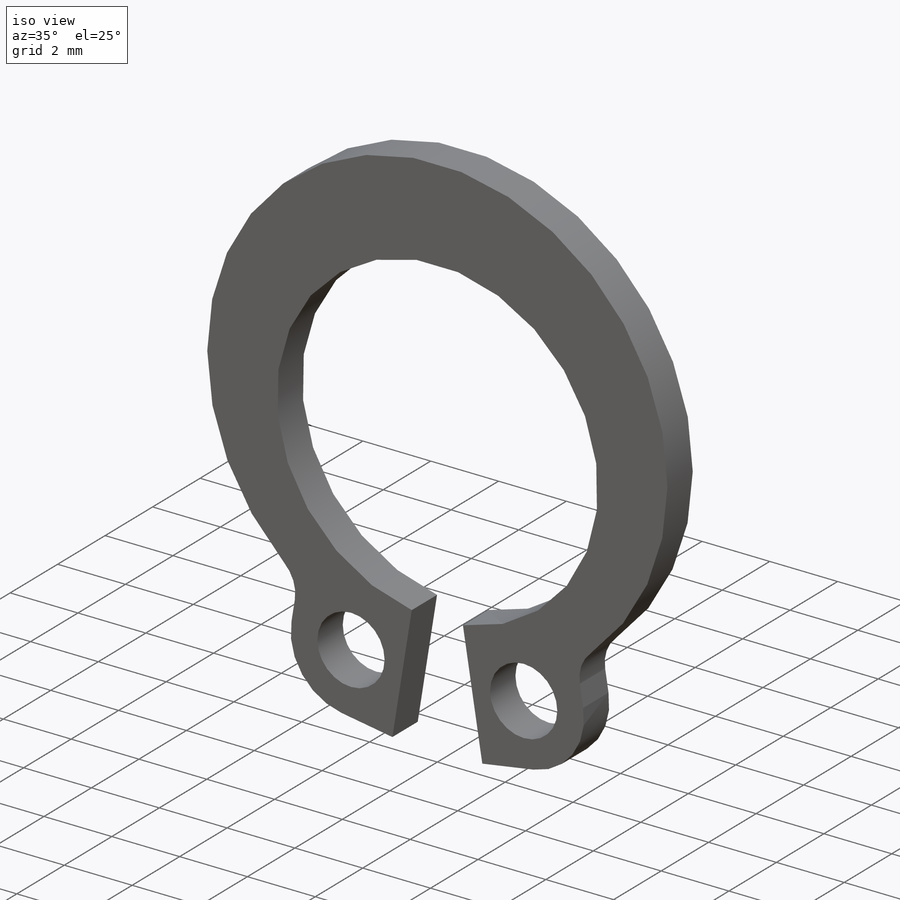
[diagram: iso view]
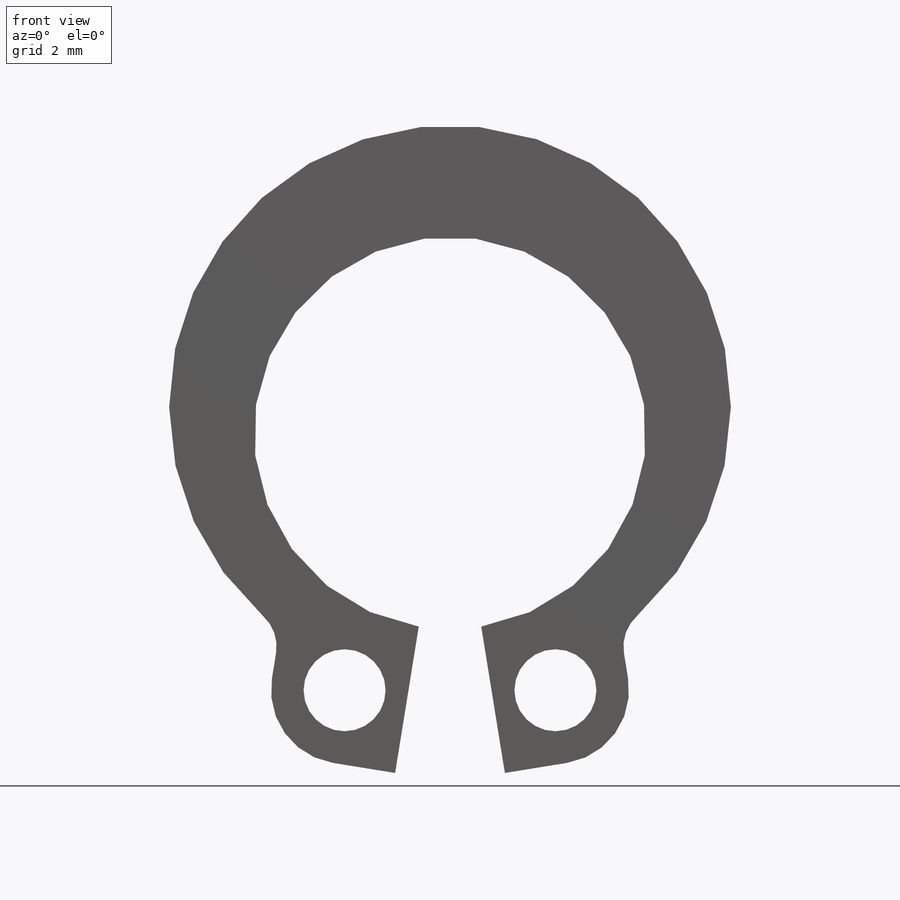
[diagram: front view]
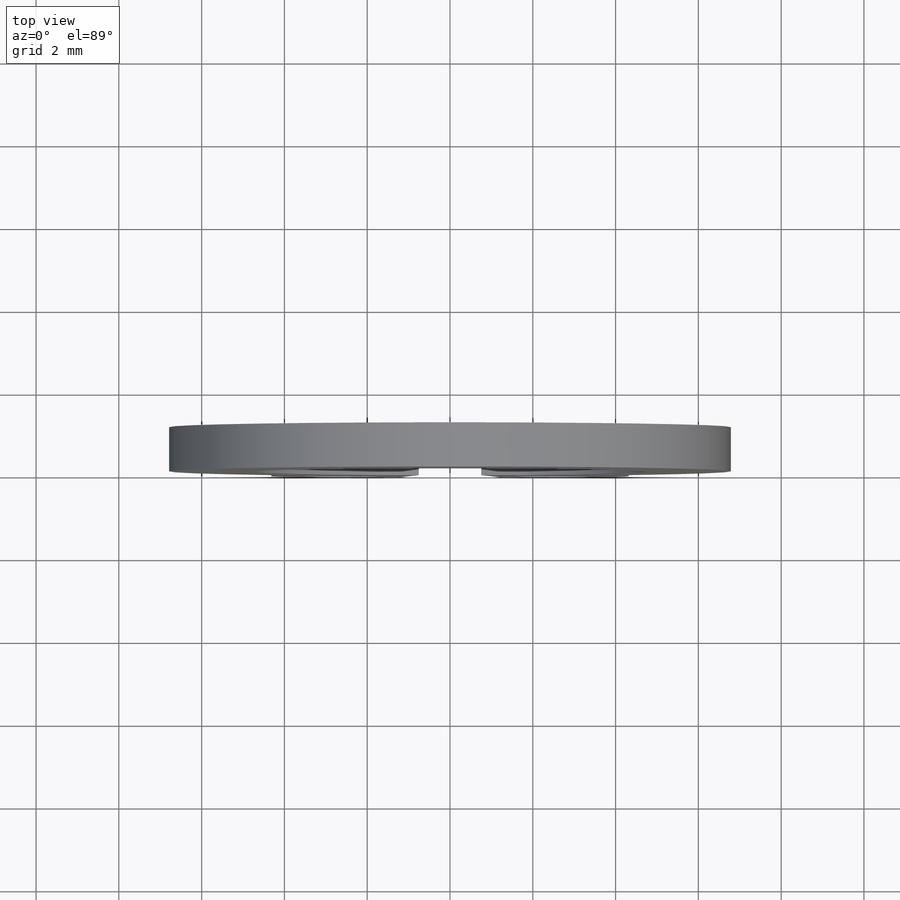
[diagram: top view]
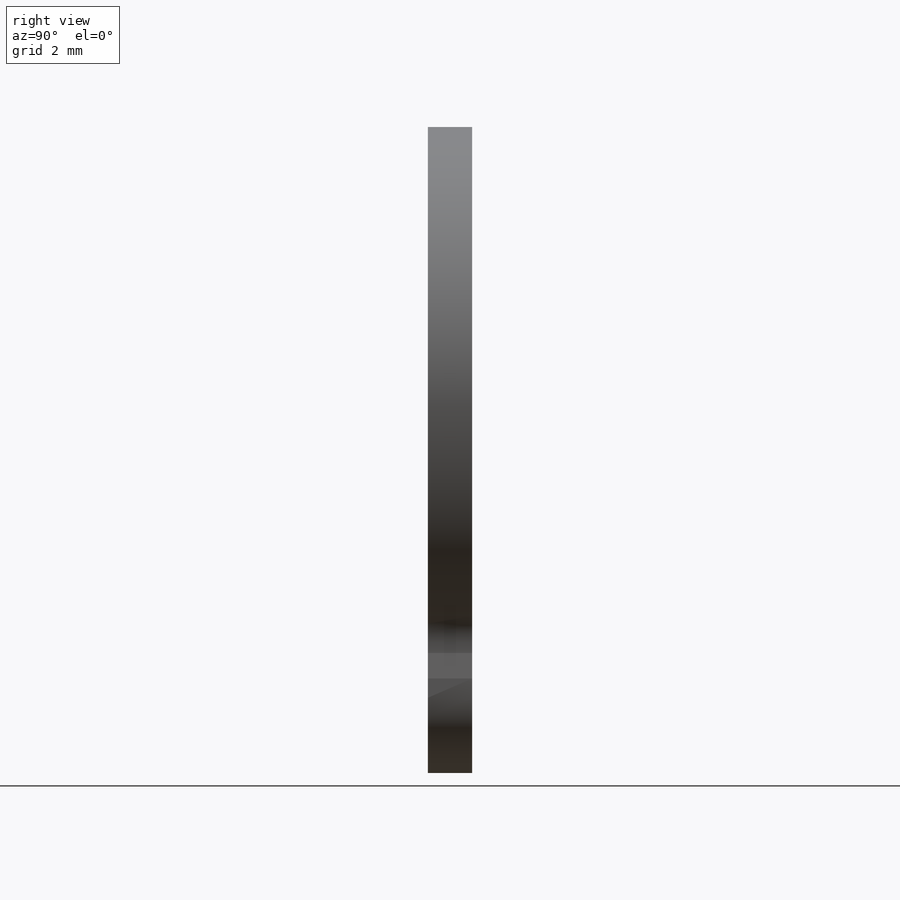
[diagram: right view]
SOLIDWORKS PART (.sldprt)
format: sldprt  version: not decoded by parser v0  size: 361,472 bytes
history: native  units: mm
features: sketch x4, plane x3, cut_extrude x2, material x1, extrude x1, fillet x1 (+9 scaffold rows collapsed)
feature tree (21):
  scaffold x9  (default folders/planes/origin — collapsed)
  material  "Aço cromo inoxidável"
  plane  "Plane1"
  plane  "Plane2"
  plane  "Plane3"
  sketch  "Clipboard"  dims[HoleDia=1.9812mm ShaftDia=9.4742mm FreeDia=8.9916mm LargeSection=1.7272mm RingHeight=15.748mm LugSection=3.5814mm LugBasis=2.54mm]
  sketch  "BodySke"  dims[c1.GrooveDia=9.4742mm c1.OutsideDia=~4.355353mm c1.TipRad=~0.23622mm c1.D3=2.6924mm c1.LugRad=7.239mm c1.HoleOffsetRad=1.5748mm c1.HoleDia=0.8636mm c2.D3=0.762mm c2.Gap=~0.89662mm c2.D2=0.508mm c2.LugFilletRad=1.778mm c2.BodyFilletRad=0.9906mm c2.CavityRad=~1.532653mm c2.CavityWidth=3.0861mm c2.D1=~5.632972mm c3.D1=10.0deg c3.D2=~1.961375mm c4.D2=15.0deg c4.LargeRad=7.4295mm c4.SmallRad=~6.315075mm c4.Gap=0.4445mm c4.D1=7.239mm c4.SmallAngle=~73.539559deg c5.D2=~3.638241mm c6.D2=15.0deg c6.HoleSpacing=2.032mm c6.Gap=0.4445mm c6.D1=2.5654mm c7.D1=~3.518715deg c7.Gap=0.4445mm c7.LugY=8.3185mm c8.D1=~1.682584mm c8.GapAng=~18.337802deg c8.HoleOffset=0.6096mm c8.HoleInset=0.7112mm c8.D2=0.5334mm c8.D3=0.5334mm c8.LugWidth=3.302mm c9.D3=~1.78562mm c10.D3=270.0deg c10.D2=~1.69164mm c11.D2=90.0deg]
  extrude  "Body"  Depth=1.0668mm Thickness=1.0668mm
  sketch  "HolSke"  dims[HoleDia=1.9812mm HoleInset=1.778mm HoleOffset=1.524mm]
  cut_extrude  "Holes"  [1 undecoded]
  sketch  "NotSke"  dims[HoleDia=1.9812mm NotchRad=6.5278mm]
  cut_extrude  "Notch"  [1 undecoded]
  fillet  "NotchFillets"  Radius=0.390293mm
decode coverage: 6 of 8 modeling features carry decoded parameters
note: ~ marks probable driven/reference dimensions
note: 2 parameter values undecoded
note: suppression state not decoded; provenance and decode notes live in map.json
